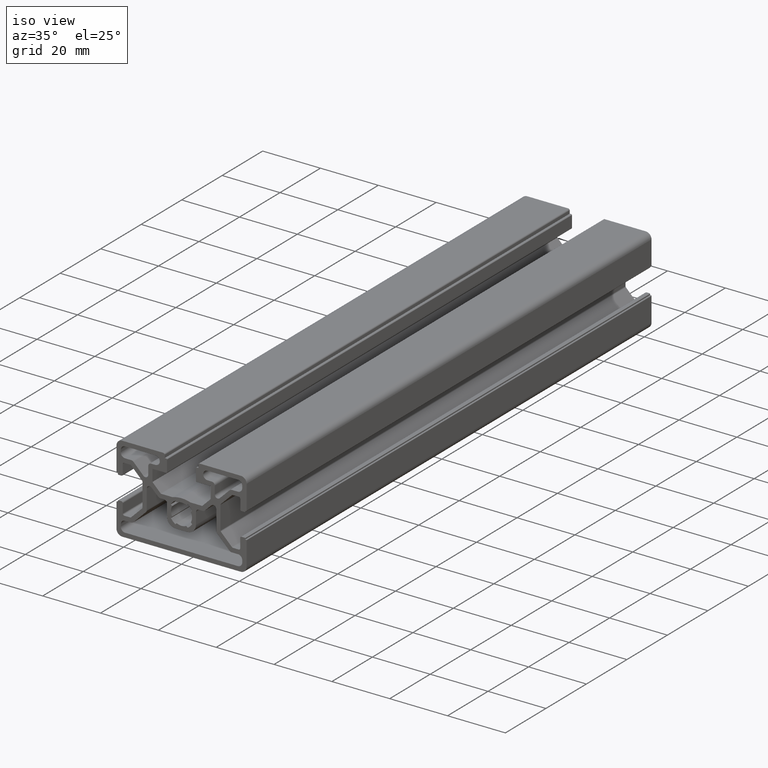
[diagram: clean part render]
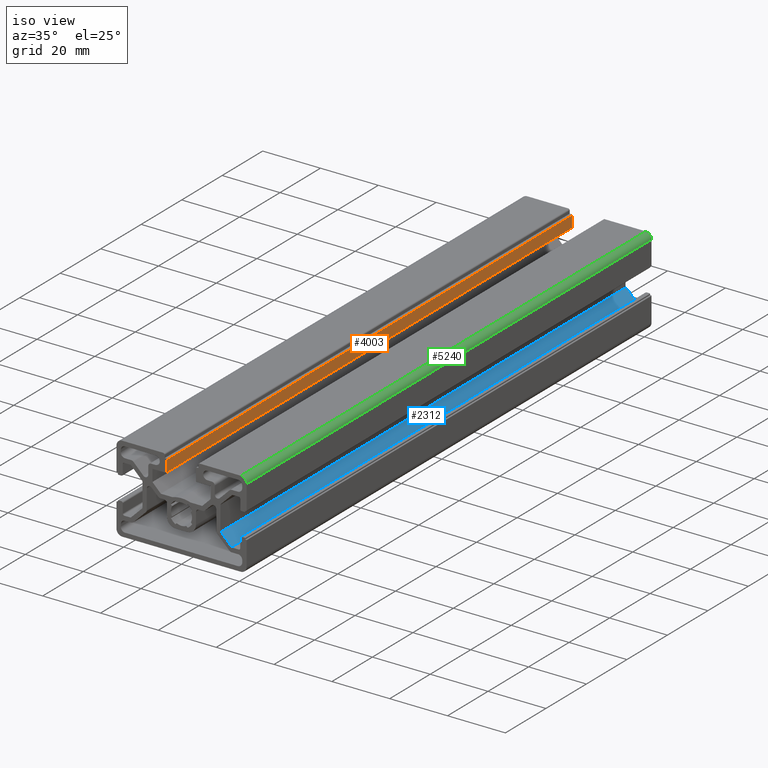
[diagram: same view with three faces highlighted in distinct colors, each labeled with its STEP entity id]
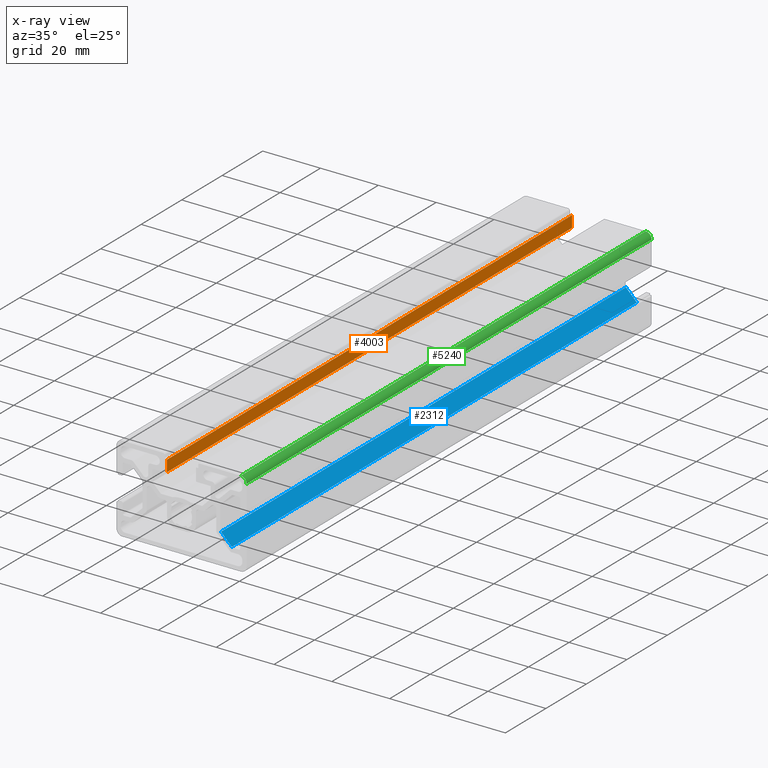
[diagram: x-ray of the same camera — body ghosted, the three highlighted faces saturated]
A machine part, iso view with three faces highlighted in distinct colors.
The next image is the same camera in x-ray (body ghosted, the three faces saturated) — at least one of them is partly hidden behind the body in this view.
Their STEP definitions:

[orange] entity #4003 — the highlighted planar face has unit normal (1, -0, 0).
#150 = ORIENTED_EDGE ( 'NONE', *, *, #4680, .T. ) ;
#280 = CARTESIAN_POINT ( 'NONE',  ( -5.000030280322811800, 0.0000000000000000000, 9.299930333477121300 ) ) ;
#422 = ORIENTED_EDGE ( 'NONE', *, *, #3416, .T. ) ;
#460 = VERTEX_POINT ( 'NONE', #2989 ) ;
#515 = EDGE_CURVE ( 'NONE', #1299, #2956, #5065, .T. ) ;
#1114 = CARTESIAN_POINT ( 'NONE',  ( -5.000030280322840200, 0.0000000000000000000, 13.19993033347700100 ) ) ;
#1126 = VECTOR ( 'NONE', #1243, 1000.000000000000000 ) ;
#1243 = DIRECTION ( 'NONE',  ( -0.0000000000000000000, -1.000000000000000000, -0.0000000000000000000 ) ) ;
#1284 = VECTOR ( 'NONE', #1961, 1000.000000000000000 ) ;
#1299 = VERTEX_POINT ( 'NONE', #280 ) ;
#1367 = DIRECTION ( 'NONE',  ( 0.0000000000000000000, 1.000000000000000000, 0.0000000000000000000 ) ) ;
#1613 = DIRECTION ( 'NONE',  ( 1.000000000000000000, -0.0000000000000000000, 7.401486830834659900E-015 ) ) ;
#1854 = ORIENTED_EDGE ( 'NONE', *, *, #5061, .F. ) ;
#1961 = DIRECTION ( 'NONE',  ( 7.401486830834659900E-015, 0.0000000000000000000, -1.000000000000000000 ) ) ;
#2205 = LINE ( 'NONE', #1114, #1284 ) ;
#2465 = DIRECTION ( 'NONE',  ( 7.401486830834659900E-015, 0.0000000000000000000, -1.000000000000000000 ) ) ;
#2516 = CARTESIAN_POINT ( 'NONE',  ( -5.000030280322840200, 0.0000000000000000000, 13.19993033347700100 ) ) ;
#2541 = FACE_OUTER_BOUND ( 'NONE', #2851, .T. ) ;
#2581 = AXIS2_PLACEMENT_3D ( 'NONE', #2516, #1613, #2465 ) ;
#2711 = VECTOR ( 'NONE', #4115, 1000.000000000000000 ) ;
#2851 = EDGE_LOOP ( 'NONE', ( #422, #5203, #1854, #150 ) ) ;
#2936 = CARTESIAN_POINT ( 'NONE',  ( -5.000030280322840200, 0.0000000000000000000, 13.19993033347700100 ) ) ;
#2956 = VERTEX_POINT ( 'NONE', #3333 ) ;
#2978 = LINE ( 'NONE', #2936, #1126 ) ;
#2989 = CARTESIAN_POINT ( 'NONE',  ( -5.000030280322840200, 200.0000000000000000, 13.19993033347700100 ) ) ;
#3279 = CARTESIAN_POINT ( 'NONE',  ( -5.000030280322840200, 200.0000000000000000, 5.107025913275720100E-014 ) ) ;
#3333 = CARTESIAN_POINT ( 'NONE',  ( -5.000030280322826900, 200.0000000000000000, 9.299930333477119500 ) ) ;
#3416 = EDGE_CURVE ( 'NONE', #4049, #1299, #2205, .T. ) ;
#3765 = VECTOR ( 'NONE', #1367, 1000.000000000000000 ) ;
#3887 = CARTESIAN_POINT ( 'NONE',  ( -5.000030280322811800, 0.0000000000000000000, 9.299930333477149700 ) ) ;
#4003 = ADVANCED_FACE ( 'NONE', ( #2541 ), #5066, .T. ) ;
#4049 = VERTEX_POINT ( 'NONE', #4611 ) ;
#4115 = DIRECTION ( 'NONE',  ( -0.0000000000000000000, 0.0000000000000000000, -1.000000000000000000 ) ) ;
#4611 = CARTESIAN_POINT ( 'NONE',  ( -5.000030280322840200, 0.0000000000000000000, 13.19993033347700100 ) ) ;
#4680 = EDGE_CURVE ( 'NONE', #460, #4049, #2978, .T. ) ;
#4713 = LINE ( 'NONE', #3279, #2711 ) ;
#5061 = EDGE_CURVE ( 'NONE', #460, #2956, #4713, .T. ) ;
#5065 = LINE ( 'NONE', #3887, #3765 ) ;
#5066 = PLANE ( 'NONE',  #2581 ) ;
#5203 = ORIENTED_EDGE ( 'NONE', *, *, #515, .T. ) ;

[blue] entity #2312 — the highlighted planar face has unit normal (0.7071, -0, 0.7071).
#16 = ORIENTED_EDGE ( 'NONE', *, *, #4554, .F. ) ;
#55 = FACE_OUTER_BOUND ( 'NONE', #4722, .T. ) ;
#66 = AXIS2_PLACEMENT_3D ( 'NONE', #2764, #3621, #4871 ) ;
#79 = CARTESIAN_POINT ( 'NONE',  ( 13.65091203966140300, 0.0000000000000000000, -4.350940151987493300 ) ) ;
#183 = LINE ( 'NONE', #4954, #1533 ) ;
#271 = DIRECTION ( 'NONE',  ( 0.7071067811865439100, 0.0000000000000000000, -0.7071067811865512400 ) ) ;
#761 = VECTOR ( 'NONE', #5230, 1000.000000000000000 ) ;
#1019 = VERTEX_POINT ( 'NONE', #2691 ) ;
#1533 = VECTOR ( 'NONE', #271, 999.9999999999998900 ) ;
#1627 = VERTEX_POINT ( 'NONE', #3589 ) ;
#1698 = LINE ( 'NONE', #4347, #761 ) ;
#2178 = EDGE_CURVE ( 'NONE', #1627, #2748, #1698, .T. ) ;
#2229 = VERTEX_POINT ( 'NONE', #79 ) ;
#2312 = ADVANCED_FACE ( 'NONE', ( #55 ), #2747, .T. ) ;
#2531 = EDGE_CURVE ( 'NONE', #1019, #2229, #3795, .T. ) ;
#2691 = CARTESIAN_POINT ( 'NONE',  ( 13.65091203966140300, 200.0000000000000000, -4.350940151987493300 ) ) ;
#2747 = PLANE ( 'NONE',  #66 ) ;
#2748 = VERTEX_POINT ( 'NONE', #3582 ) ;
#2764 = CARTESIAN_POINT ( 'NONE',  ( 13.65091203966139900, 0.0000000000000000000, -4.350940151987489700 ) ) ;
#2809 = CARTESIAN_POINT ( 'NONE',  ( 13.65091203966139900, 0.0000000000000000000, -4.350940151987489700 ) ) ;
#2824 = DIRECTION ( 'NONE',  ( 0.7071067811865441300, 0.0000000000000000000, -0.7071067811865510100 ) ) ;
#3133 = VECTOR ( 'NONE', #5555, 1000.000000000000000 ) ;
#3177 = LINE ( 'NONE', #2809, #5134 ) ;
#3582 = CARTESIAN_POINT ( 'NONE',  ( 17.40355295474717700, 200.0000000000000000, -8.103581067073305300 ) ) ;
#3589 = CARTESIAN_POINT ( 'NONE',  ( 17.40355295474718000, 0.0000000000000000000, -8.103581067073303500 ) ) ;
#3604 = ORIENTED_EDGE ( 'NONE', *, *, #2178, .T. ) ;
#3621 = DIRECTION ( 'NONE',  ( 0.7071067811865510100, -0.0000000000000000000, 0.7071067811865441300 ) ) ;
#3795 = LINE ( 'NONE', #4643, #3133 ) ;
#3910 = ORIENTED_EDGE ( 'NONE', *, *, #2531, .T. ) ;
#4347 = CARTESIAN_POINT ( 'NONE',  ( 17.40355295474720200, 0.0000000000000000000, -8.103581067073328400 ) ) ;
#4526 = EDGE_CURVE ( 'NONE', #2229, #1627, #3177, .T. ) ;
#4554 = EDGE_CURVE ( 'NONE', #1019, #2748, #183, .T. ) ;
#4643 = CARTESIAN_POINT ( 'NONE',  ( 13.65091203966139900, 0.0000000000000000000, -4.350940151987489700 ) ) ;
#4722 = EDGE_LOOP ( 'NONE', ( #5544, #3604, #16, #3910 ) ) ;
#4871 = DIRECTION ( 'NONE',  ( 0.7071067811865441300, 0.0000000000000000000, -0.7071067811865510100 ) ) ;
#4954 = CARTESIAN_POINT ( 'NONE',  ( 13.65091203966139900, 200.0000000000000000, -4.350940151987489700 ) ) ;
#5134 = VECTOR ( 'NONE', #2824, 999.9999999999998900 ) ;
#5230 = DIRECTION ( 'NONE',  ( 0.0000000000000000000, 1.000000000000000000, 0.0000000000000000000 ) ) ;
#5544 = ORIENTED_EDGE ( 'NONE', *, *, #4526, .T. ) ;
#5555 = DIRECTION ( 'NONE',  ( -0.0000000000000000000, -1.000000000000000000, -0.0000000000000000000 ) ) ;

[green] entity #5240 — the highlighted cylindrical surface (edge-blend (fillet) strip) has radius 2 mm, axis along (0, 1, 0).
#112 = FACE_OUTER_BOUND ( 'NONE', #5164, .T. ) ;
#390 = VERTEX_POINT ( 'NONE', #2046 ) ;
#428 = VERTEX_POINT ( 'NONE', #5519 ) ;
#480 = ORIENTED_EDGE ( 'NONE', *, *, #3288, .F. ) ;
#563 = CARTESIAN_POINT ( 'NONE',  ( 22.49999999991250000, 0.0000000000000000000, 13.00002767684867800 ) ) ;
#567 = CARTESIAN_POINT ( 'NONE',  ( 22.49999999991250000, 0.0000000000000000000, 13.00002767684870100 ) ) ;
#705 = VECTOR ( 'NONE', #3919, 1000.000000000000000 ) ;
#819 = CIRCLE ( 'NONE', #3594, 2.000000000000000000 ) ;
#921 = CARTESIAN_POINT ( 'NONE',  ( 20.49999999991250000, 0.0000000000000000000, 13.00002767682680000 ) ) ;
#1149 = CARTESIAN_POINT ( 'NONE',  ( 20.49999999991250000, 200.0000000000000000, 13.00002767682680000 ) ) ;
#1636 = EDGE_CURVE ( 'NONE', #4550, #428, #4434, .T. ) ;
#1973 = LINE ( 'NONE', #4791, #705 ) ;
#2046 = CARTESIAN_POINT ( 'NONE',  ( 20.49999999991769800, 0.0000000000000000000, 15.00002767682685000 ) ) ;
#2463 = EDGE_CURVE ( 'NONE', #390, #3794, #819, .T. ) ;
#2523 = CYLINDRICAL_SURFACE ( 'NONE', #4088, 2.000000000000000000 ) ;
#2629 = ORIENTED_EDGE ( 'NONE', *, *, #1636, .F. ) ;
#2793 = ORIENTED_EDGE ( 'NONE', *, *, #2463, .T. ) ;
#2935 = LINE ( 'NONE', #567, #4317 ) ;
#3288 = EDGE_CURVE ( 'NONE', #428, #3794, #2935, .T. ) ;
#3407 = ORIENTED_EDGE ( 'NONE', *, *, #5288, .T. ) ;
#3423 = DIRECTION ( 'NONE',  ( 0.0000000000000000000, 0.0000000000000000000, 1.000000000000000000 ) ) ;
#3566 = DIRECTION ( 'NONE',  ( 0.0000000000000000000, 1.000000000000000000, 0.0000000000000000000 ) ) ;
#3594 = AXIS2_PLACEMENT_3D ( 'NONE', #4162, #5114, #5043 ) ;
#3794 = VERTEX_POINT ( 'NONE', #563 ) ;
#3844 = DIRECTION ( 'NONE',  ( 0.0000000000000000000, 1.000000000000000000, 0.0000000000000000000 ) ) ;
#3919 = DIRECTION ( 'NONE',  ( -0.0000000000000000000, -1.000000000000000000, -0.0000000000000000000 ) ) ;
#4083 = AXIS2_PLACEMENT_3D ( 'NONE', #1149, #3566, #4105 ) ;
#4088 = AXIS2_PLACEMENT_3D ( 'NONE', #921, #3844, #3423 ) ;
#4105 = DIRECTION ( 'NONE',  ( 0.0000000000000000000, 0.0000000000000000000, 1.000000000000000000 ) ) ;
#4162 = CARTESIAN_POINT ( 'NONE',  ( 20.49999999991250000, 0.0000000000000000000, 13.00002767682680000 ) ) ;
#4317 = VECTOR ( 'NONE', #4831, 1000.000000000000000 ) ;
#4434 = CIRCLE ( 'NONE', #4083, 2.000000000000000000 ) ;
#4528 = CARTESIAN_POINT ( 'NONE',  ( 20.49999999991250000, 200.0000000000000000, 15.00002767686375200 ) ) ;
#4550 = VERTEX_POINT ( 'NONE', #4528 ) ;
#4791 = CARTESIAN_POINT ( 'NONE',  ( 20.49999999991250000, 0.0000000000000000000, 15.00002767682680000 ) ) ;
#4831 = DIRECTION ( 'NONE',  ( -0.0000000000000000000, -1.000000000000000000, -0.0000000000000000000 ) ) ;
#5043 = DIRECTION ( 'NONE',  ( 0.0000000000000000000, 0.0000000000000000000, 1.000000000000000000 ) ) ;
#5114 = DIRECTION ( 'NONE',  ( 0.0000000000000000000, 1.000000000000000000, 0.0000000000000000000 ) ) ;
#5164 = EDGE_LOOP ( 'NONE', ( #2793, #480, #2629, #3407 ) ) ;
#5240 = ADVANCED_FACE ( 'NONE', ( #112 ), #2523, .T. ) ;
#5288 = EDGE_CURVE ( 'NONE', #4550, #390, #1973, .T. ) ;
#5519 = CARTESIAN_POINT ( 'NONE',  ( 22.49999999991250000, 200.0000000000000000, 13.00002767683775000 ) ) ;